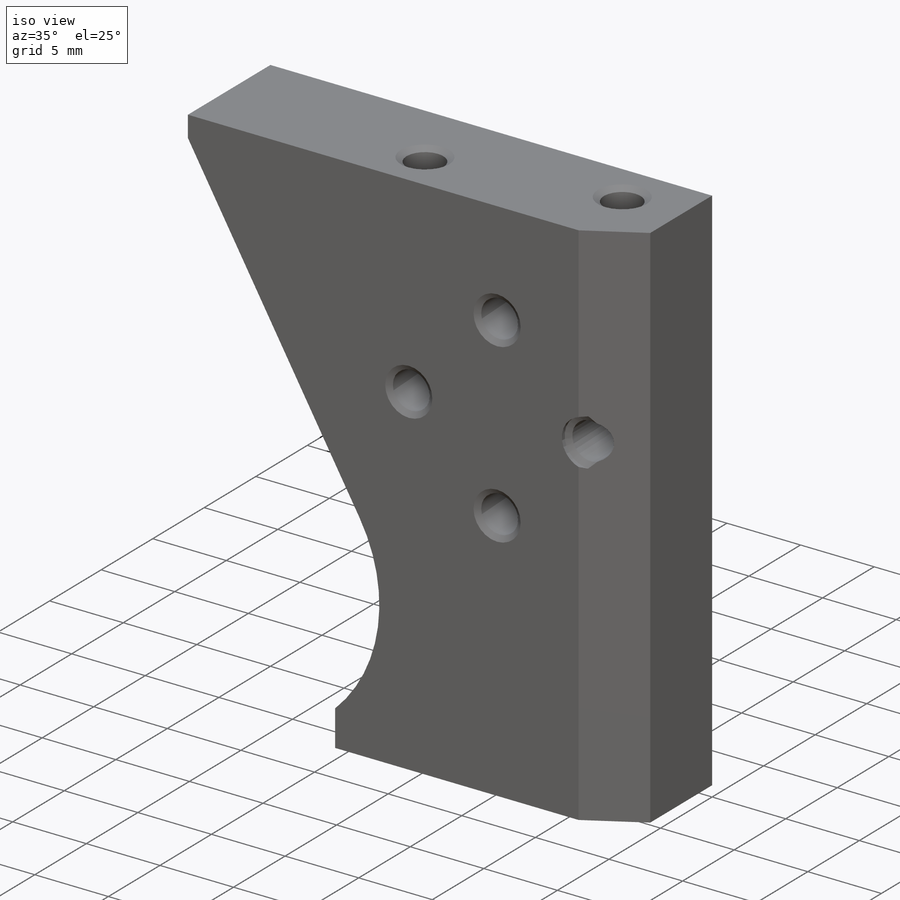
[diagram: iso view]
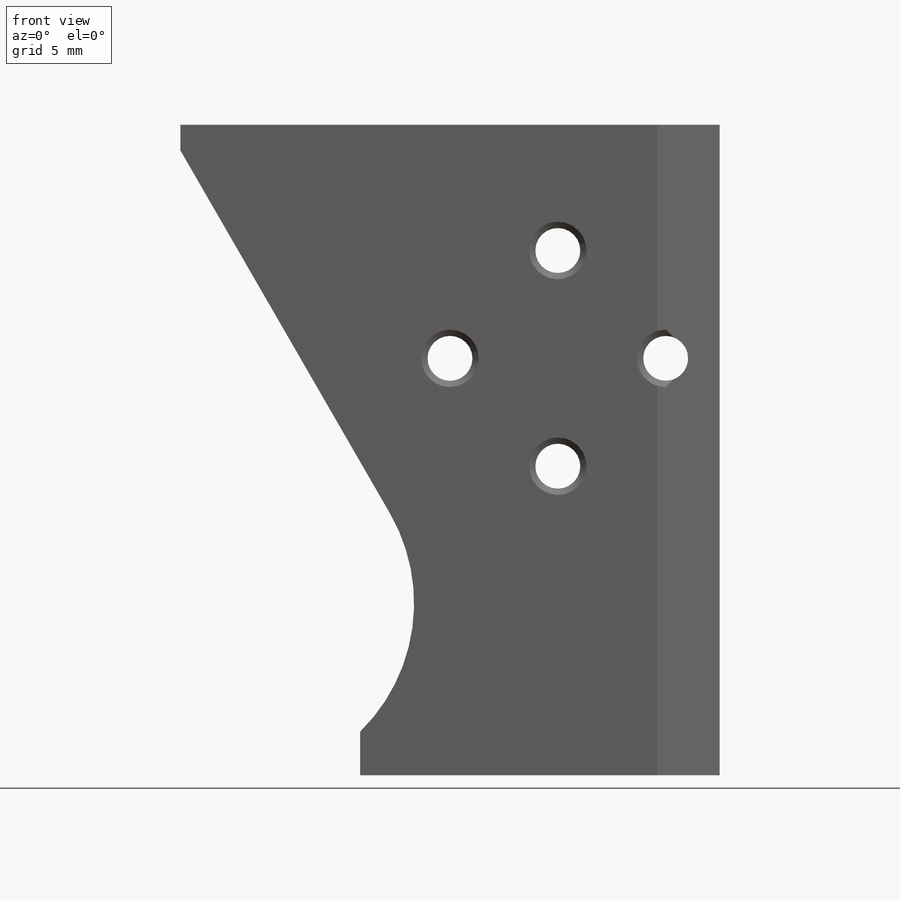
[diagram: front view]
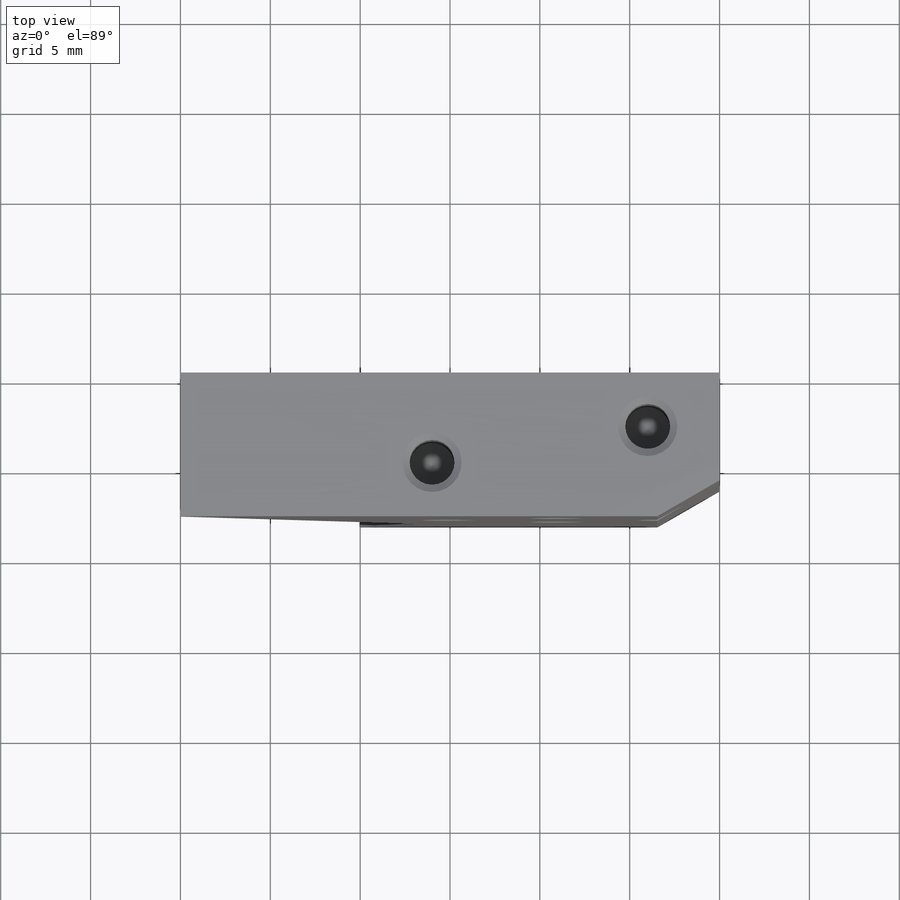
[diagram: top view]
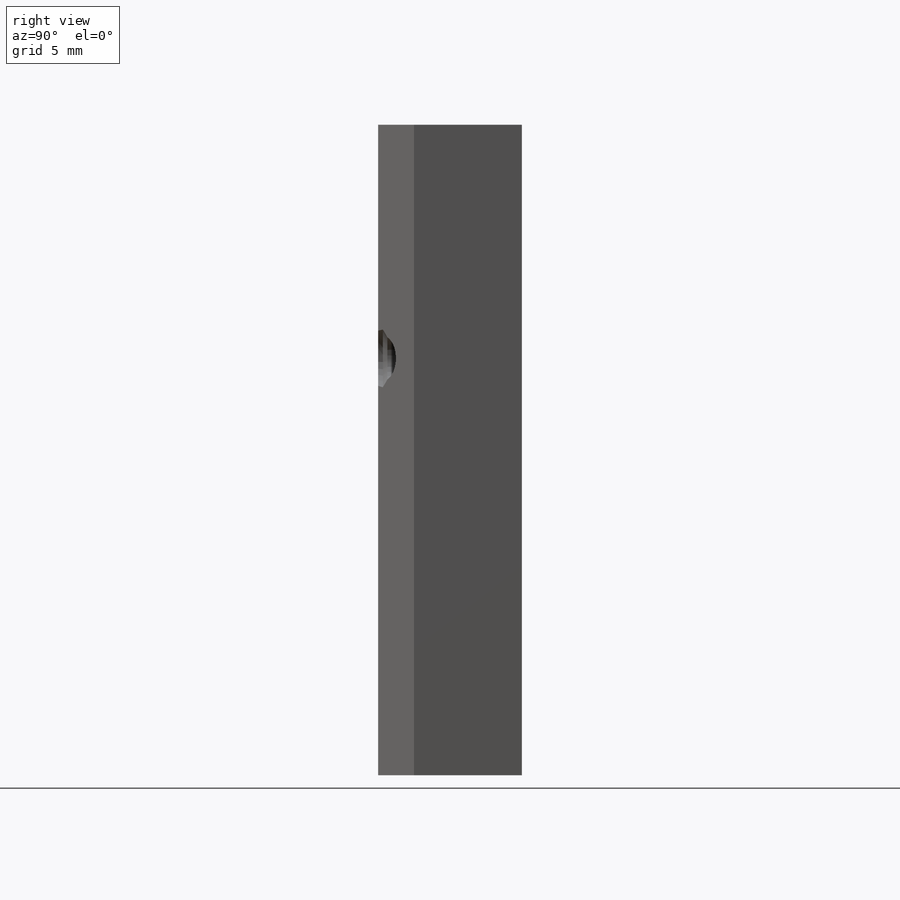
[diagram: right view]
SOLIDWORKS PART (.sldprt)
format: sldprt  version: not decoded by parser v0  size: 357,888 bytes
history: native  units: mm
features: sketch x9, thread x8, plane x3, hole x3, cut_extrude x2, material x1, extrude x1, chamfer x1 (+13 scaffold rows collapsed)
feature tree (41):
  scaffold x13  (default folders/planes/origin — collapsed)
  material  "2024-T4"
  plane  "Спереди"
  plane  "Сверху"
  plane  "Справа"
  sketch  "Эскиз1"  dims[D1=30.0mm D2=36.2mm]
  extrude  "Бобышка-Вытянуть1"  Depth=8mm
  sketch  "Эскиз2"  dims[c1.D3=10.0mm c1.D1=17.0mm c1.D2=~32.377154mm c2.D2=60.0deg c2.D4=10.0mm c2.D5=14.0mm c2.D1=24.0mm c3.D5=13.0mm c3.D1=9.57mm]
  cut_extrude  "Вырез-Вытянуть1"  [1 undecoded]
  chamfer  "Фаска1"  Distance=2mm Angle=60deg
  hole  "Отверстие обработанное метчиком M31"  [1 undecoded]
  sketch  "Эскиз4"  dims[c1.D1=3.0mm c1.D2=5.0mm c1.D3=9.0mm c2.D1=15.0mm]
  sketch  "Эскиз3"  dims[hole-wizard template sketch: 39 standard entries collapsed; hole parameters kept: c13.Диаметр сверла=2.5mm c13.Глубина сверла=10.5mm c13.Диаметр передней зенковки=3.3mm c13.D4=~33.297463mm c13.Угол передней зенковки=110.0deg c14.D5=~14.816244mm c14.Угол заточки сверла=118.0deg]
  thread  "Отверстие резьбы5"  Diameter=8mm  [1 undecoded]
  thread  "Отверстие резьбы6"  Diameter=8mm  [1 undecoded]
  hole  "Отверстие обработанное метчиком M32"  [1 undecoded]
  sketch  "Эскиз6"  dims[c1.D1=5.0mm c1.D2=6.0mm c1.D3=7.0mm c2.D2=14.0mm c2.D4=3.0mm c2.D5=12.0mm]
  sketch  "Эскиз5"  dims[hole-wizard template sketch: 39 standard entries collapsed; hole parameters kept: c13.Диаметр сверла=2.5mm c13.Глубина сверла=10.0mm c13.Диаметр передней зенковки=3.3mm c13.D4=~33.297463mm c13.Угол передней зенковки=110.0deg c14.D5=~14.816244mm c14.Угол заточки сверла=118.0deg]
  thread  "Отверстие резьбы7"  Diameter=7.5mm  [1 undecoded]
  thread  "Отверстие резьбы8"  Diameter=7.5mm  [1 undecoded]
  sketch  "Эскиз7"  dims[c1.D1=~14.242497mm c1.D2=12.0mm c2.D1=11.0mm c2.D2=11.0mm c2.D3=15.0mm c2.D4=15.0mm c3.D1=16.0mm c3.D3=9.5mm c3.D4=13.0mm]
  cut_extrude  "Вырез-Вытянуть2"  [1 undecoded]
  hole  "Отверстие обработанное метчиком M35"  [1 undecoded]
  sketch  "Эскиз10"  dims[c1.D1=3.0mm c1.D2=18.0mm c1.D3=6.0mm c1.D4=7.0mm c2.D1=12.0mm c2.D2=21.0mm c2.D3=12.0mm c2.D5=6.0mm c2.D6=6.0mm]
  sketch  "Эскиз9"  dims[hole-wizard template sketch: 47 standard entries collapsed; hole parameters kept: c15.Глубина проходного сверла=8.0mm c15.Диаметр передней зенковки=3.2mm c15.D4=~3.666174mm c15.Угол передней зенковки=110.0deg c15.Диаметр задней зенковки=3.2mm c15.D6=~9.919017mm c15.Угол задней зенковки=110.0deg]
  thread  "Отверстие резьбы1"  Diameter=3mm  [1 undecoded]
  thread  "Отверстие резьбы2"  Diameter=3mm  [1 undecoded]
  thread  "Отверстие резьбы3"  Diameter=3mm  [1 undecoded]
  thread  "Отверстие резьбы4"  Diameter=3mm  [1 undecoded]
decode coverage: 19 of 24 modeling features carry decoded parameters
note: ~ marks probable driven/reference dimensions
note: 13 parameter values undecoded
summary: no parameter record found for 5 features
note: suppression state not decoded; provenance and decode notes live in map.json
